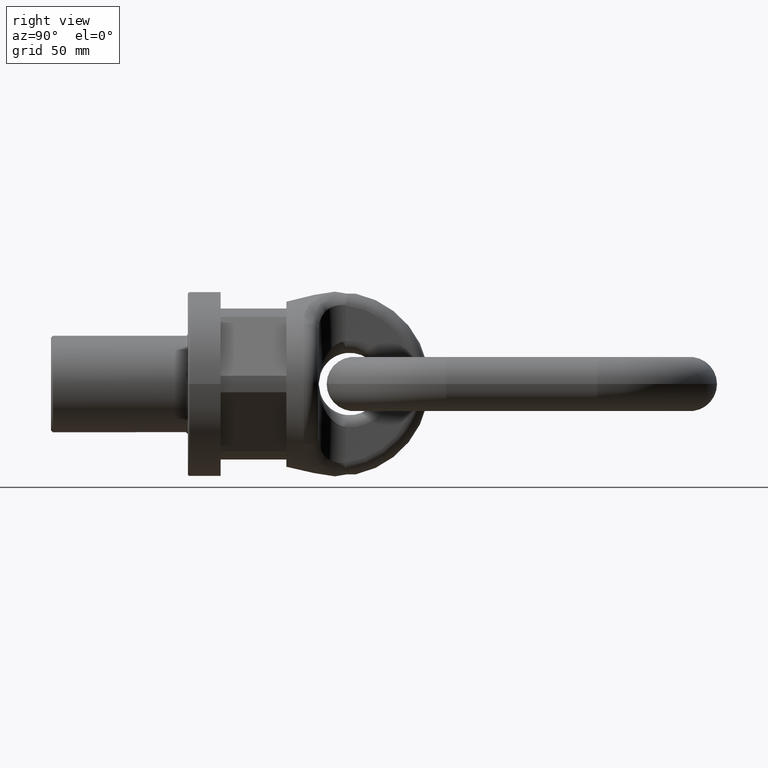
[diagram: clean part render]
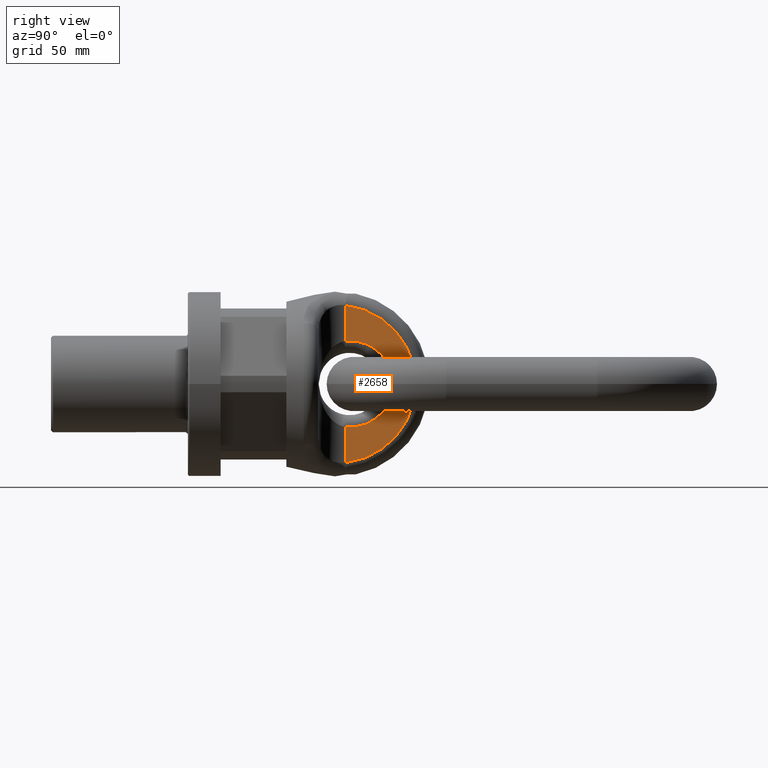
[diagram: same view with one face highlighted and labeled with its STEP entity id]
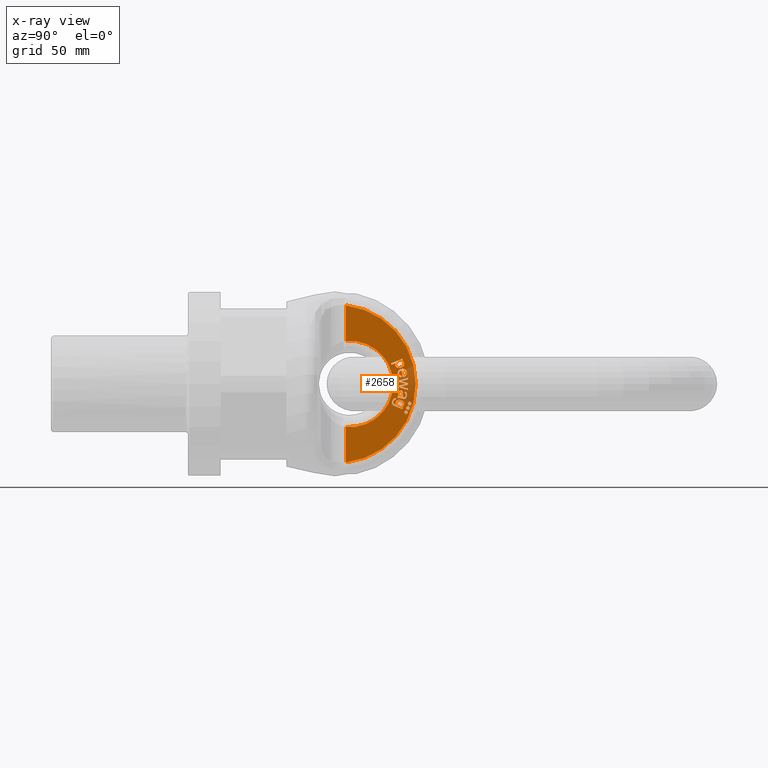
[diagram: x-ray of the same camera — body ghosted, the highlighted face saturated]
A machine part, right view. The second image highlights one B-rep face of the part: STEP entity #2658.
The next image is the same camera in x-ray: the body ghosted, the highlighted face saturated — about 9% of this face is hidden behind the body in this view.
In plain terms, the highlighted planar face has unit normal (1, -0, 0).
Its self-contained STEP definition (entity closure, byte-faithful):
#308=B_SPLINE_CURVE_WITH_KNOTS('',3,(#6660,#6661,#6662,#6663,#6664,#6665),
 .UNSPECIFIED.,.F.,.F.,(4,2,4),(0.,0.670501232539027,1.),.UNSPECIFIED.);
#309=B_SPLINE_CURVE_WITH_KNOTS('',3,(#6667,#6668,#6669,#6670),
 .UNSPECIFIED.,.F.,.F.,(4,4),(0.,1.),.UNSPECIFIED.);
#310=B_SPLINE_CURVE_WITH_KNOTS('',3,(#6672,#6673,#6674,#6675,#6676,#6677),
 .UNSPECIFIED.,.F.,.F.,(4,2,4),(0.,0.470198675496688,1.),.UNSPECIFIED.);
#311=B_SPLINE_CURVE_WITH_KNOTS('',3,(#6679,#6680,#6681,#6682),
 .UNSPECIFIED.,.F.,.F.,(4,4),(0.,1.),.UNSPECIFIED.);
#312=B_SPLINE_CURVE_WITH_KNOTS('',3,(#6686,#6687,#6688,#6689),
 .UNSPECIFIED.,.F.,.F.,(4,4),(0.,1.),.UNSPECIFIED.);
#313=B_SPLINE_CURVE_WITH_KNOTS('',3,(#6691,#6692,#6693,#6694,#6695,#6696),
 .UNSPECIFIED.,.F.,.F.,(4,2,4),(0.,0.444196428571434,1.),.UNSPECIFIED.);
#314=B_SPLINE_CURVE_WITH_KNOTS('',3,(#6698,#6699,#6700,#6701,#6702,#6703),
 .UNSPECIFIED.,.F.,.F.,(4,2,4),(0.,0.500000000000002,1.),.UNSPECIFIED.);
#315=B_SPLINE_CURVE_WITH_KNOTS('',3,(#6705,#6706,#6707,#6708,#6709,#6710,
#6711,#6712,#6713,#6714,#6715,#6716,#6717,#6718),.UNSPECIFIED.,.F.,.F.,
(4,2,2,2,2,2,4),(0.,0.149537296690975,0.323681996634893,0.497826696578807,
0.672812675266412,0.847798653954013,1.),.UNSPECIFIED.);
#316=B_SPLINE_CURVE_WITH_KNOTS('',3,(#6723,#6724,#6725,#6726),
 .UNSPECIFIED.,.F.,.F.,(4,4),(0.,1.),.UNSPECIFIED.);
#317=B_SPLINE_CURVE_WITH_KNOTS('',3,(#6731,#6732,#6733,#6734),
 .UNSPECIFIED.,.F.,.F.,(4,4),(0.,1.),.UNSPECIFIED.);
#318=B_SPLINE_CURVE_WITH_KNOTS('',3,(#6736,#6737,#6738,#6739,#6740,#6741),
 .UNSPECIFIED.,.F.,.F.,(4,2,4),(0.,0.565320665083134,1.),.UNSPECIFIED.);
#319=B_SPLINE_CURVE_WITH_KNOTS('',3,(#6743,#6744,#6745,#6746),
 .UNSPECIFIED.,.F.,.F.,(4,4),(0.,1.),.UNSPECIFIED.);
#320=B_SPLINE_CURVE_WITH_KNOTS('',3,(#6750,#6751,#6752,#6753),
 .UNSPECIFIED.,.F.,.F.,(4,4),(0.,1.),.UNSPECIFIED.);
#321=B_SPLINE_CURVE_WITH_KNOTS('',3,(#6755,#6756,#6757,#6758,#6759,#6760),
 .UNSPECIFIED.,.F.,.F.,(4,2,4),(0.,0.429530201342282,1.),.UNSPECIFIED.);
#322=B_SPLINE_CURVE_WITH_KNOTS('',3,(#6762,#6763,#6764,#6765,#6766,#6767,
#6768,#6769,#6770,#6771,#6772,#6773),.UNSPECIFIED.,.F.,.F.,(4,2,2,2,2,4),
(0.,0.253866185683641,0.504362466247586,0.754858746811531,0.877429373405765,
1.),.UNSPECIFIED.);
#323=B_SPLINE_CURVE_WITH_KNOTS('',3,(#6797,#6798,#6799,#6800),
 .UNSPECIFIED.,.F.,.F.,(4,4),(0.,1.),.UNSPECIFIED.);
#324=B_SPLINE_CURVE_WITH_KNOTS('',3,(#6802,#6803,#6804,#6805),
 .UNSPECIFIED.,.F.,.F.,(4,4),(0.,1.),.UNSPECIFIED.);
#325=B_SPLINE_CURVE_WITH_KNOTS('',3,(#6827,#6828,#6829,#6830),
 .UNSPECIFIED.,.F.,.F.,(4,4),(0.,1.),.UNSPECIFIED.);
#326=B_SPLINE_CURVE_WITH_KNOTS('',3,(#6835,#6836,#6837,#6838),
 .UNSPECIFIED.,.F.,.F.,(4,4),(0.,1.),.UNSPECIFIED.);
#327=B_SPLINE_CURVE_WITH_KNOTS('',3,(#6843,#6844,#6845,#6846),
 .UNSPECIFIED.,.F.,.F.,(4,4),(0.,1.),.UNSPECIFIED.);
#328=B_SPLINE_CURVE_WITH_KNOTS('',3,(#6848,#6849,#6850,#6851,#6852,#6853,
#6854,#6855,#6856,#6857),.UNSPECIFIED.,.F.,.F.,(4,2,2,2,4),(0.,0.296954694318532,
0.533565653962708,0.771641518085911,1.),.UNSPECIFIED.);
#329=B_SPLINE_CURVE_WITH_KNOTS('',3,(#6859,#6860,#6861,#6862),
 .UNSPECIFIED.,.F.,.F.,(4,4),(0.,1.),.UNSPECIFIED.);
#330=B_SPLINE_CURVE_WITH_KNOTS('',3,(#6866,#6867,#6868,#6869),
 .UNSPECIFIED.,.F.,.F.,(4,4),(0.,1.),.UNSPECIFIED.);
#331=B_SPLINE_CURVE_WITH_KNOTS('',3,(#6871,#6872,#6873,#6874),
 .UNSPECIFIED.,.F.,.F.,(4,4),(0.,1.),.UNSPECIFIED.);
#332=B_SPLINE_CURVE_WITH_KNOTS('',3,(#6876,#6877,#6878,#6879),
 .UNSPECIFIED.,.F.,.F.,(4,4),(0.,1.),.UNSPECIFIED.);
#333=B_SPLINE_CURVE_WITH_KNOTS('',3,(#6881,#6882,#6883,#6884),
 .UNSPECIFIED.,.F.,.F.,(4,4),(0.,1.),.UNSPECIFIED.);
#334=B_SPLINE_CURVE_WITH_KNOTS('',3,(#6886,#6887,#6888,#6889,#6890,#6891),
 .UNSPECIFIED.,.F.,.F.,(4,2,4),(0.,0.440217391304352,1.),.UNSPECIFIED.);
#335=B_SPLINE_CURVE_WITH_KNOTS('',3,(#6893,#6894,#6895,#6896),
 .UNSPECIFIED.,.F.,.F.,(4,4),(0.,1.),.UNSPECIFIED.);
#336=B_SPLINE_CURVE_WITH_KNOTS('',3,(#6900,#6901,#6902,#6903),
 .UNSPECIFIED.,.F.,.F.,(4,4),(0.,1.),.UNSPECIFIED.);
#337=B_SPLINE_CURVE_WITH_KNOTS('',3,(#6905,#6906,#6907,#6908,#6909,#6910),
 .UNSPECIFIED.,.F.,.F.,(4,2,4),(0.,0.52387640449438,1.),.UNSPECIFIED.);
#338=B_SPLINE_CURVE_WITH_KNOTS('',3,(#6912,#6913,#6914,#6915),
 .UNSPECIFIED.,.F.,.F.,(4,4),(0.,1.),.UNSPECIFIED.);
#339=B_SPLINE_CURVE_WITH_KNOTS('',3,(#6917,#6918,#6919,#6920,#6921,#6922,
#6923,#6924),.UNSPECIFIED.,.F.,.F.,(4,2,2,4),(0.,0.269230769230754,0.527644230769219,
1.),.UNSPECIFIED.);
#340=B_SPLINE_CURVE_WITH_KNOTS('',3,(#6928,#6929,#6930,#6931),
 .UNSPECIFIED.,.F.,.F.,(4,4),(0.,1.),.UNSPECIFIED.);
#341=B_SPLINE_CURVE_WITH_KNOTS('',3,(#6933,#6934,#6935,#6936),
 .UNSPECIFIED.,.F.,.F.,(4,4),(0.,1.),.UNSPECIFIED.);
#342=B_SPLINE_CURVE_WITH_KNOTS('',3,(#6938,#6939,#6940,#6941,#6942,#6943,
#6944,#6945,#6946,#6947),.UNSPECIFIED.,.F.,.F.,(4,2,2,2,4),(0.,0.245990994549334,
0.507925849856492,0.76986070516365,1.),.UNSPECIFIED.);
#2057=LINE('',#6657,#2313);
#2058=LINE('',#6684,#2314);
#2059=LINE('',#6720,#2315);
#2060=LINE('',#6722,#2316);
#2061=LINE('',#6729,#2317);
#2062=LINE('',#6748,#2318);
#2063=LINE('',#6780,#2319);
#2064=LINE('',#6785,#2320);
#2065=LINE('',#6788,#2321);
#2066=LINE('',#6791,#2322);
#2067=LINE('',#6793,#2323);
#2068=LINE('',#6795,#2324);
#2069=LINE('',#6807,#2325);
#2070=LINE('',#6809,#2326);
#2071=LINE('',#6811,#2327);
#2072=LINE('',#6813,#2328);
#2073=LINE('',#6815,#2329);
#2074=LINE('',#6817,#2330);
#2075=LINE('',#6819,#2331);
#2076=LINE('',#6821,#2332);
#2077=LINE('',#6823,#2333);
#2078=LINE('',#6825,#2334);
#2079=LINE('',#6832,#2335);
#2080=LINE('',#6834,#2336);
#2081=LINE('',#6841,#2337);
#2082=LINE('',#6864,#2338);
#2083=LINE('',#6898,#2339);
#2084=LINE('',#6925,#2340);
#2085=LINE('',#6949,#2341);
#2086=LINE('',#6951,#2342);
#2087=LINE('',#6953,#2343);
#2088=LINE('',#6955,#2344);
#2089=LINE('',#6957,#2345);
#2090=LINE('',#6959,#2346);
#2313=VECTOR('',#5907,1.);
#2314=VECTOR('',#5908,1.);
#2315=VECTOR('',#5909,1.);
#2316=VECTOR('',#5910,1.);
#2317=VECTOR('',#5911,1.);
#2318=VECTOR('',#5912,1.);
#2319=VECTOR('',#5919,1.);
#2320=VECTOR('',#5922,1.);
#2321=VECTOR('',#5925,1.);
#2322=VECTOR('',#5926,1.);
#2323=VECTOR('',#5927,1.);
#2324=VECTOR('',#5928,1.);
#2325=VECTOR('',#5929,1.);
#2326=VECTOR('',#5930,1.);
#2327=VECTOR('',#5931,1.);
#2328=VECTOR('',#5932,1.);
#2329=VECTOR('',#5933,1.);
#2330=VECTOR('',#5934,1.);
#2331=VECTOR('',#5935,1.);
#2332=VECTOR('',#5936,1.);
#2333=VECTOR('',#5937,1.);
#2334=VECTOR('',#5938,1.);
#2335=VECTOR('',#5939,1.);
#2336=VECTOR('',#5940,1.);
#2337=VECTOR('',#5941,1.);
#2338=VECTOR('',#5942,1.);
#2339=VECTOR('',#5943,1.);
#2340=VECTOR('',#5944,1.);
#2341=VECTOR('',#5945,1.);
#2342=VECTOR('',#5946,1.);
#2343=VECTOR('',#5947,1.);
#2344=VECTOR('',#5948,1.);
#2345=VECTOR('',#5949,1.);
#2346=VECTOR('',#5950,1.);
#2658=ADVANCED_FACE('',(#2999,#3000,#3001,#3002,#3003,#3004,#3005,#3006,
#3007),#2890,.T.);
#2890=PLANE('',#5641);
#2999=FACE_BOUND('',#3085,.T.);
#3000=FACE_BOUND('',#3086,.T.);
#3001=FACE_BOUND('',#3087,.T.);
#3002=FACE_BOUND('',#3088,.T.);
#3003=FACE_BOUND('',#3089,.T.);
#3004=FACE_BOUND('',#3090,.T.);
#3005=FACE_BOUND('',#3091,.T.);
#3006=FACE_BOUND('',#3092,.T.);
#3007=FACE_BOUND('',#3093,.T.);
#3085=EDGE_LOOP('',(#3429,#3430,#3431,#3432,#3433,#3434,#3435,#3436,#3437,
#3438,#3439,#3440));
#3086=EDGE_LOOP('',(#3441,#3442,#3443,#3444,#3445,#3446,#3447,#3448,#3449));
#3087=EDGE_LOOP('',(#3450));
#3088=EDGE_LOOP('',(#3451));
#3089=EDGE_LOOP('',(#3452));
#3090=EDGE_LOOP('',(#3453,#3454,#3455,#3456));
#3091=EDGE_LOOP('',(#3457,#3458,#3459,#3460,#3461,#3462,#3463,#3464,#3465,
#3466,#3467,#3468,#3469,#3470,#3471,#3472,#3473,#3474,#3475));
#3092=EDGE_LOOP('',(#3476,#3477,#3478,#3479,#3480,#3481,#3482,#3483,#3484,
#3485,#3486,#3487,#3488,#3489,#3490,#3491,#3492));
#3093=EDGE_LOOP('',(#3493,#3494,#3495,#3496,#3497,#3498,#3499,#3500,#3501,
#3502));
#3429=ORIENTED_EDGE('',*,*,#4976,.T.);
#3430=ORIENTED_EDGE('',*,*,#4977,.T.);
#3431=ORIENTED_EDGE('',*,*,#4978,.T.);
#3432=ORIENTED_EDGE('',*,*,#4979,.T.);
#3433=ORIENTED_EDGE('',*,*,#4980,.T.);
#3434=ORIENTED_EDGE('',*,*,#4981,.T.);
#3435=ORIENTED_EDGE('',*,*,#4982,.T.);
#3436=ORIENTED_EDGE('',*,*,#4983,.T.);
#3437=ORIENTED_EDGE('',*,*,#4984,.T.);
#3438=ORIENTED_EDGE('',*,*,#4985,.T.);
#3439=ORIENTED_EDGE('',*,*,#4986,.T.);
#3440=ORIENTED_EDGE('',*,*,#4987,.T.);
#3441=ORIENTED_EDGE('',*,*,#4988,.T.);
#3442=ORIENTED_EDGE('',*,*,#4989,.T.);
#3443=ORIENTED_EDGE('',*,*,#4990,.T.);
#3444=ORIENTED_EDGE('',*,*,#4991,.T.);
#3445=ORIENTED_EDGE('',*,*,#4992,.T.);
#3446=ORIENTED_EDGE('',*,*,#4993,.T.);
#3447=ORIENTED_EDGE('',*,*,#4994,.T.);
#3448=ORIENTED_EDGE('',*,*,#4995,.T.);
#3449=ORIENTED_EDGE('',*,*,#4996,.T.);
#3450=ORIENTED_EDGE('',*,*,#4997,.T.);
#3451=ORIENTED_EDGE('',*,*,#4998,.T.);
#3452=ORIENTED_EDGE('',*,*,#4999,.T.);
#3453=ORIENTED_EDGE('',*,*,#5000,.T.);
#3454=ORIENTED_EDGE('',*,*,#5001,.T.);
#3455=ORIENTED_EDGE('',*,*,#5002,.T.);
#3456=ORIENTED_EDGE('',*,*,#5003,.T.);
#3457=ORIENTED_EDGE('',*,*,#5004,.T.);
#3458=ORIENTED_EDGE('',*,*,#5005,.T.);
#3459=ORIENTED_EDGE('',*,*,#5006,.T.);
#3460=ORIENTED_EDGE('',*,*,#5007,.T.);
#3461=ORIENTED_EDGE('',*,*,#5008,.T.);
#3462=ORIENTED_EDGE('',*,*,#5009,.T.);
#3463=ORIENTED_EDGE('',*,*,#5010,.T.);
#3464=ORIENTED_EDGE('',*,*,#5011,.T.);
#3465=ORIENTED_EDGE('',*,*,#5012,.T.);
#3466=ORIENTED_EDGE('',*,*,#5013,.T.);
#3467=ORIENTED_EDGE('',*,*,#5014,.T.);
#3468=ORIENTED_EDGE('',*,*,#5015,.T.);
#3469=ORIENTED_EDGE('',*,*,#5016,.T.);
#3470=ORIENTED_EDGE('',*,*,#5017,.T.);
#3471=ORIENTED_EDGE('',*,*,#5018,.T.);
#3472=ORIENTED_EDGE('',*,*,#5019,.T.);
#3473=ORIENTED_EDGE('',*,*,#5020,.T.);
#3474=ORIENTED_EDGE('',*,*,#5021,.T.);
#3475=ORIENTED_EDGE('',*,*,#5022,.T.);
#3476=ORIENTED_EDGE('',*,*,#5023,.T.);
#3477=ORIENTED_EDGE('',*,*,#5024,.T.);
#3478=ORIENTED_EDGE('',*,*,#5025,.T.);
#3479=ORIENTED_EDGE('',*,*,#5026,.T.);
#3480=ORIENTED_EDGE('',*,*,#5027,.T.);
#3481=ORIENTED_EDGE('',*,*,#5028,.T.);
#3482=ORIENTED_EDGE('',*,*,#5029,.T.);
#3483=ORIENTED_EDGE('',*,*,#5030,.T.);
#3484=ORIENTED_EDGE('',*,*,#5031,.T.);
#3485=ORIENTED_EDGE('',*,*,#5032,.T.);
#3486=ORIENTED_EDGE('',*,*,#5033,.T.);
#3487=ORIENTED_EDGE('',*,*,#5034,.T.);
#3488=ORIENTED_EDGE('',*,*,#5035,.T.);
#3489=ORIENTED_EDGE('',*,*,#5036,.T.);
#3490=ORIENTED_EDGE('',*,*,#5037,.T.);
#3491=ORIENTED_EDGE('',*,*,#5038,.T.);
#3492=ORIENTED_EDGE('',*,*,#5039,.T.);
#3493=ORIENTED_EDGE('',*,*,#5040,.T.);
#3494=ORIENTED_EDGE('',*,*,#5041,.T.);
#3495=ORIENTED_EDGE('',*,*,#5042,.T.);
#3496=ORIENTED_EDGE('',*,*,#5043,.T.);
#3497=ORIENTED_EDGE('',*,*,#5044,.T.);
#3498=ORIENTED_EDGE('',*,*,#5045,.T.);
#3499=ORIENTED_EDGE('',*,*,#5046,.T.);
#3500=ORIENTED_EDGE('',*,*,#5047,.T.);
#3501=ORIENTED_EDGE('',*,*,#5048,.T.);
#3502=ORIENTED_EDGE('',*,*,#5049,.T.);
#4566=VERTEX_POINT('',#6658);
#4567=VERTEX_POINT('',#6659);
#4568=VERTEX_POINT('',#6666);
#4569=VERTEX_POINT('',#6671);
#4570=VERTEX_POINT('',#6678);
#4571=VERTEX_POINT('',#6683);
#4572=VERTEX_POINT('',#6685);
#4573=VERTEX_POINT('',#6690);
#4574=VERTEX_POINT('',#6697);
#4575=VERTEX_POINT('',#6704);
#4576=VERTEX_POINT('',#6719);
#4577=VERTEX_POINT('',#6721);
#4578=VERTEX_POINT('',#6727);
#4579=VERTEX_POINT('',#6728);
#4580=VERTEX_POINT('',#6730);
#4581=VERTEX_POINT('',#6735);
#4582=VERTEX_POINT('',#6742);
#4583=VERTEX_POINT('',#6747);
#4584=VERTEX_POINT('',#6749);
#4585=VERTEX_POINT('',#6754);
#4586=VERTEX_POINT('',#6761);
#4587=VERTEX_POINT('',#6775);
#4588=VERTEX_POINT('',#6777);
#4589=VERTEX_POINT('',#6779);
#4590=VERTEX_POINT('',#6781);
#4591=VERTEX_POINT('',#6782);
#4592=VERTEX_POINT('',#6784);
#4593=VERTEX_POINT('',#6786);
#4594=VERTEX_POINT('',#6789);
#4595=VERTEX_POINT('',#6790);
#4596=VERTEX_POINT('',#6792);
#4597=VERTEX_POINT('',#6794);
#4598=VERTEX_POINT('',#6796);
#4599=VERTEX_POINT('',#6801);
#4600=VERTEX_POINT('',#6806);
#4601=VERTEX_POINT('',#6808);
#4602=VERTEX_POINT('',#6810);
#4603=VERTEX_POINT('',#6812);
#4604=VERTEX_POINT('',#6814);
#4605=VERTEX_POINT('',#6816);
#4606=VERTEX_POINT('',#6818);
#4607=VERTEX_POINT('',#6820);
#4608=VERTEX_POINT('',#6822);
#4609=VERTEX_POINT('',#6824);
#4610=VERTEX_POINT('',#6826);
#4611=VERTEX_POINT('',#6831);
#4612=VERTEX_POINT('',#6833);
#4613=VERTEX_POINT('',#6839);
#4614=VERTEX_POINT('',#6840);
#4615=VERTEX_POINT('',#6842);
#4616=VERTEX_POINT('',#6847);
#4617=VERTEX_POINT('',#6858);
#4618=VERTEX_POINT('',#6863);
#4619=VERTEX_POINT('',#6865);
#4620=VERTEX_POINT('',#6870);
#4621=VERTEX_POINT('',#6875);
#4622=VERTEX_POINT('',#6880);
#4623=VERTEX_POINT('',#6885);
#4624=VERTEX_POINT('',#6892);
#4625=VERTEX_POINT('',#6897);
#4626=VERTEX_POINT('',#6899);
#4627=VERTEX_POINT('',#6904);
#4628=VERTEX_POINT('',#6911);
#4629=VERTEX_POINT('',#6916);
#4630=VERTEX_POINT('',#6926);
#4631=VERTEX_POINT('',#6927);
#4632=VERTEX_POINT('',#6932);
#4633=VERTEX_POINT('',#6937);
#4634=VERTEX_POINT('',#6948);
#4635=VERTEX_POINT('',#6950);
#4636=VERTEX_POINT('',#6952);
#4637=VERTEX_POINT('',#6954);
#4638=VERTEX_POINT('',#6956);
#4639=VERTEX_POINT('',#6958);
#4976=EDGE_CURVE('',#4566,#4567,#2057,.T.);
#4977=EDGE_CURVE('',#4567,#4568,#308,.T.);
#4978=EDGE_CURVE('',#4568,#4569,#309,.T.);
#4979=EDGE_CURVE('',#4569,#4570,#310,.T.);
#4980=EDGE_CURVE('',#4570,#4571,#311,.T.);
#4981=EDGE_CURVE('',#4571,#4572,#2058,.T.);
#4982=EDGE_CURVE('',#4572,#4573,#312,.T.);
#4983=EDGE_CURVE('',#4573,#4574,#313,.T.);
#4984=EDGE_CURVE('',#4574,#4575,#314,.T.);
#4985=EDGE_CURVE('',#4575,#4576,#315,.T.);
#4986=EDGE_CURVE('',#4576,#4577,#2059,.T.);
#4987=EDGE_CURVE('',#4577,#4566,#2060,.T.);
#4988=EDGE_CURVE('',#4578,#4579,#316,.T.);
#4989=EDGE_CURVE('',#4579,#4580,#2061,.T.);
#4990=EDGE_CURVE('',#4580,#4581,#317,.T.);
#4991=EDGE_CURVE('',#4581,#4582,#318,.T.);
#4992=EDGE_CURVE('',#4582,#4583,#319,.T.);
#4993=EDGE_CURVE('',#4583,#4584,#2062,.T.);
#4994=EDGE_CURVE('',#4584,#4585,#320,.T.);
#4995=EDGE_CURVE('',#4585,#4586,#321,.T.);
#4996=EDGE_CURVE('',#4586,#4578,#322,.T.);
#4997=EDGE_CURVE('',#4587,#4587,#5548,.T.);
#4998=EDGE_CURVE('',#4588,#4588,#5549,.T.);
#4999=EDGE_CURVE('',#4589,#4589,#5550,.T.);
#5000=EDGE_CURVE('',#4590,#4591,#2063,.T.);
#5001=EDGE_CURVE('',#4591,#4592,#5551,.T.);
#5002=EDGE_CURVE('',#4592,#4593,#2064,.T.);
#5003=EDGE_CURVE('',#4593,#4590,#5552,.T.);
#5004=EDGE_CURVE('',#4594,#4595,#2065,.T.);
#5005=EDGE_CURVE('',#4595,#4596,#2066,.T.);
#5006=EDGE_CURVE('',#4596,#4597,#2067,.T.);
#5007=EDGE_CURVE('',#4597,#4598,#2068,.T.);
#5008=EDGE_CURVE('',#4598,#4599,#323,.T.);
#5009=EDGE_CURVE('',#4599,#4600,#324,.T.);
#5010=EDGE_CURVE('',#4600,#4601,#2069,.T.);
#5011=EDGE_CURVE('',#4601,#4602,#2070,.T.);
#5012=EDGE_CURVE('',#4602,#4603,#2071,.T.);
#5013=EDGE_CURVE('',#4603,#4604,#2072,.T.);
#5014=EDGE_CURVE('',#4604,#4605,#2073,.T.);
#5015=EDGE_CURVE('',#4605,#4606,#2074,.T.);
#5016=EDGE_CURVE('',#4606,#4607,#2075,.T.);
#5017=EDGE_CURVE('',#4607,#4608,#2076,.T.);
#5018=EDGE_CURVE('',#4608,#4609,#2077,.T.);
#5019=EDGE_CURVE('',#4609,#4610,#2078,.T.);
#5020=EDGE_CURVE('',#4610,#4611,#325,.T.);
#5021=EDGE_CURVE('',#4611,#4612,#2079,.T.);
#5022=EDGE_CURVE('',#4612,#4594,#2080,.T.);
#5023=EDGE_CURVE('',#4613,#4614,#326,.T.);
#5024=EDGE_CURVE('',#4614,#4615,#2081,.T.);
#5025=EDGE_CURVE('',#4615,#4616,#327,.T.);
#5026=EDGE_CURVE('',#4616,#4617,#328,.T.);
#5027=EDGE_CURVE('',#4617,#4618,#329,.T.);
#5028=EDGE_CURVE('',#4618,#4619,#2082,.T.);
#5029=EDGE_CURVE('',#4619,#4620,#330,.T.);
#5030=EDGE_CURVE('',#4620,#4621,#331,.T.);
#5031=EDGE_CURVE('',#4621,#4622,#332,.T.);
#5032=EDGE_CURVE('',#4622,#4623,#333,.T.);
#5033=EDGE_CURVE('',#4623,#4624,#334,.T.);
#5034=EDGE_CURVE('',#4624,#4625,#335,.T.);
#5035=EDGE_CURVE('',#4625,#4626,#2083,.T.);
#5036=EDGE_CURVE('',#4626,#4627,#336,.T.);
#5037=EDGE_CURVE('',#4627,#4628,#337,.T.);
#5038=EDGE_CURVE('',#4628,#4629,#338,.T.);
#5039=EDGE_CURVE('',#4629,#4613,#339,.T.);
#5040=EDGE_CURVE('',#4630,#4631,#2084,.T.);
#5041=EDGE_CURVE('',#4631,#4632,#340,.T.);
#5042=EDGE_CURVE('',#4632,#4633,#341,.T.);
#5043=EDGE_CURVE('',#4633,#4634,#342,.T.);
#5044=EDGE_CURVE('',#4634,#4635,#2085,.T.);
#5045=EDGE_CURVE('',#4635,#4636,#2086,.T.);
#5046=EDGE_CURVE('',#4636,#4637,#2087,.T.);
#5047=EDGE_CURVE('',#4637,#4638,#2088,.T.);
#5048=EDGE_CURVE('',#4638,#4639,#2089,.T.);
#5049=EDGE_CURVE('',#4639,#4630,#2090,.T.);
#5548=CIRCLE('',#5636,0.9);
#5549=CIRCLE('',#5637,0.9);
#5550=CIRCLE('',#5638,0.9);
#5551=CIRCLE('',#5639,21.5);
#5552=CIRCLE('',#5640,39.2905841137543);
#5636=AXIS2_PLACEMENT_3D('',#6774,#5913,#5914);
#5637=AXIS2_PLACEMENT_3D('',#6776,#5915,#5916);
#5638=AXIS2_PLACEMENT_3D('',#6778,#5917,#5918);
#5639=AXIS2_PLACEMENT_3D('',#6783,#5920,#5921);
#5640=AXIS2_PLACEMENT_3D('',#6787,#5923,#5924);
#5641=AXIS2_PLACEMENT_3D('',#6960,#5951,#5952);
#5907=DIRECTION('',(-1.30040941015037E-16,-0.374817493438867,-0.92709861752254));
#5908=DIRECTION('',(-1.76855906663422E-16,-0.509752445022502,-0.860321128877805));
#5909=DIRECTION('',(-1.30040941015361E-16,-0.374817493439802,-0.927098617522162));
#5910=DIRECTION('',(3.21651947272403E-16,0.927098617522554,-0.374817493438833));
#5911=DIRECTION('',(-7.10391998252269E-17,-0.204756552871418,0.97881293108347));
#5912=DIRECTION('',(2.95258561137855E-17,0.0851024861387772,-0.996372202970857));
#5913=DIRECTION('',(-1.,3.46944695195361E-16,0.));
#5914=DIRECTION('',(0.,0.999999999999997,0.));
#5915=DIRECTION('',(-1.,3.46944695195361E-16,0.));
#5916=DIRECTION('',(0.,0.999999999999997,0.));
#5917=DIRECTION('',(-1.,3.46944695195361E-16,0.));
#5918=DIRECTION('',(0.,0.999999999999997,0.));
#5919=DIRECTION('',(0.,0.,-1.));
#5920=DIRECTION('',(-1.,3.46944695195361E-16,0.));
#5921=DIRECTION('',(3.22739251344522E-16,1.,0.));
#5922=DIRECTION('',(0.,0.,-1.));
#5923=DIRECTION('',(1.,-3.46944695195361E-16,0.));
#5924=DIRECTION('',(3.53208997036934E-16,1.,0.));
#5925=DIRECTION('',(1.73802266450972E-19,0.000500950926351836,-0.999999874524077));
#5926=DIRECTION('',(-3.30550145334174E-16,-0.952745927266721,0.303768329614324));
#5927=DIRECTION('',(-1.73802266460211E-19,-0.000500950926378467,0.999999874524077));
#5928=DIRECTION('',(3.35048327118242E-16,0.965711053542926,0.259619261737283));
#5929=DIRECTION('',(-1.73802266860902E-19,-0.00050095092753338,0.999999874524076));
#5930=DIRECTION('',(-3.35577016754003E-16,-0.967234897668755,0.25388314778991));
#5931=DIRECTION('',(-1.73802266458135E-19,-0.000500950926372482,0.999999874524077));
#5932=DIRECTION('',(3.31094896077287E-16,0.954316064382684,0.298799011479533));
#5933=DIRECTION('',(1.73802266460211E-19,0.000500950926378467,-0.999999874524077));
#5934=DIRECTION('',(-3.34064523309161E-16,-0.962875432123419,-0.269946109831463));
#5935=DIRECTION('',(3.36172517470205E-16,0.96895131162305,-0.247251604047317));
#5936=DIRECTION('',(3.34485825316377E-16,0.96408975248355,-0.265576635185039));
#5937=DIRECTION('',(1.73802266467179E-19,0.000500950926398549,-0.999999874524077));
#5938=DIRECTION('',(-3.35606900252588E-16,-0.967321030989135,-0.253554773187405));
#5939=DIRECTION('',(1.73802266580637E-19,0.00050095092672557,-0.999999874524077));
#5940=DIRECTION('',(3.3236942960569E-16,0.95798965716578,-0.286802748876978));
#5941=DIRECTION('',(7.06989244013763E-17,0.203775775737301,0.979017585757611));
#5942=DIRECTION('',(-2.05539117948393E-17,-0.0592426172801564,-0.998243613702486));
#5943=DIRECTION('',(1.13196019061656E-16,0.326265311530174,0.945278237606324));
#5944=DIRECTION('',(1.30363139388309E-16,0.375746167022102,-0.926722621914561));
#5945=DIRECTION('',(-1.30363139388601E-16,-0.375746167022945,0.926722621914219));
#5946=DIRECTION('',(-3.21521497590723E-16,-0.926722621914358,-0.375746167022603));
#5947=DIRECTION('',(-1.30363139388485E-16,-0.37574616702261,0.926722621914356));
#5948=DIRECTION('',(3.21521497590723E-16,0.926722621914359,0.375746167022601));
#5949=DIRECTION('',(1.30363139388489E-16,0.375746167022622,-0.92672262191435));
#5950=DIRECTION('',(-3.21521497590724E-16,-0.92672262191436,-0.375746167022599));
#5951=DIRECTION('',(1.,-3.46944695195361E-16,0.));
#5952=DIRECTION('',(3.46944695195361E-16,1.,0.));
#6657=CARTESIAN_POINT('',(13.5,130.372061157971,46.4066705185968));
#6658=CARTESIAN_POINT('',(13.5,106.81728875282,-11.8552764693059));
#6659=CARTESIAN_POINT('',(13.5,106.557962951412,-12.496710223552));
#6660=CARTESIAN_POINT('',(13.5,106.557962951412,-12.496710223552));
#6661=CARTESIAN_POINT('',(13.5,105.396777269296,-12.0272534704497));
#6662=CARTESIAN_POINT('',(13.5,104.23559158718,-11.5577967173475));
#6663=CARTESIAN_POINT('',(13.5,102.503774215691,-10.857638790233));
#6664=CARTESIAN_POINT('',(13.5,102.100283137163,-10.6271271267037));
#6665=CARTESIAN_POINT('',(13.5,101.863932669478,-10.3968049736574));
#6666=CARTESIAN_POINT('',(13.5,101.863932669478,-10.3968049736574));
#6667=CARTESIAN_POINT('',(13.5,101.863932669478,-10.3968049736574));
#6668=CARTESIAN_POINT('',(13.5,101.629005223463,-10.1670581352594));
#6669=CARTESIAN_POINT('',(13.5,101.493570020937,-9.87140544270642));
#6670=CARTESIAN_POINT('',(13.5,101.456456290789,-9.51274275944862));
#6671=CARTESIAN_POINT('',(13.5,101.456456290789,-9.51274275944862));
#6672=CARTESIAN_POINT('',(13.5,101.456456290789,-9.51274275944862));
#6673=CARTESIAN_POINT('',(13.5,101.418504924528,-9.15205682981726));
#6674=CARTESIAN_POINT('',(13.5,101.483072808438,-8.76711918321557));
#6675=CARTESIAN_POINT('',(13.5,101.836645684398,-7.89256842121864));
#6676=CARTESIAN_POINT('',(13.5,102.093978166428,-7.54681799063787));
#6677=CARTESIAN_POINT('',(13.5,102.422157388609,-7.32067852790126));
#6678=CARTESIAN_POINT('',(13.5,102.422157388609,-7.32067852790126));
#6679=CARTESIAN_POINT('',(13.5,102.422157388609,-7.32067852790126));
#6680=CARTESIAN_POINT('',(13.5,102.749498974676,-7.09251581879108));
#6681=CARTESIAN_POINT('',(13.5,103.143113892573,-7.07308336900351));
#6682=CARTESIAN_POINT('',(13.5,103.602749891744,-7.25891000043981));
#6683=CARTESIAN_POINT('',(13.5,103.602749891744,-7.25891000043981));
#6684=CARTESIAN_POINT('',(13.5,133.237606451551,42.7565308250357));
#6685=CARTESIAN_POINT('',(13.5,103.227502662356,-7.8922235296791));
#6686=CARTESIAN_POINT('',(13.5,103.227502662356,-7.8922235296791));
#6687=CARTESIAN_POINT('',(13.5,103.004935493624,-7.83256441811896));
#6688=CARTESIAN_POINT('',(13.5,102.808677776625,-7.8593488761822));
#6689=CARTESIAN_POINT('',(13.5,102.639314896914,-7.97112897214365));
#6690=CARTESIAN_POINT('',(13.5,102.639314896914,-7.97112897214365));
#6691=CARTESIAN_POINT('',(13.5,102.639314896914,-7.97112897214365));
#6692=CARTESIAN_POINT('',(13.5,102.470789653317,-8.08493231447867));
#6693=CARTESIAN_POINT('',(13.5,102.327150839782,-8.28460391178866));
#6694=CARTESIAN_POINT('',(13.5,102.064898110593,-8.93327732466055));
#6695=CARTESIAN_POINT('',(13.5,102.030932044492,-9.22614194570865));
#6696=CARTESIAN_POINT('',(13.5,102.106752508565,-9.45220880531664));
#6697=CARTESIAN_POINT('',(13.5,102.106752508565,-9.45220880531664));
#6698=CARTESIAN_POINT('',(13.5,102.106752508565,-9.45220880531664));
#6699=CARTESIAN_POINT('',(13.5,102.184581379863,-9.67740304784787));
#6700=CARTESIAN_POINT('',(13.5,102.31805067069,-9.85096990208865));
#6701=CARTESIAN_POINT('',(13.5,102.70313294919,-10.0942542291326));
#6702=CARTESIAN_POINT('',(13.5,102.98155029248,-10.22871558589));
#6703=CARTESIAN_POINT('',(13.5,103.34584383981,-10.3759961358829));
#6704=CARTESIAN_POINT('',(13.5,103.34584383981,-10.3759961358829));
#6705=CARTESIAN_POINT('',(13.5,103.34584383981,-10.3759961358829));
#6706=CARTESIAN_POINT('',(13.5,103.114694661529,-9.9321483042439));
#6707=CARTESIAN_POINT('',(13.5,103.093619397498,-9.48057855877232));
#6708=CARTESIAN_POINT('',(13.5,103.494023117957,-8.49019325876255));
#6709=CARTESIAN_POINT('',(13.5,103.860828189619,-8.13984826029875));
#6710=CARTESIAN_POINT('',(13.5,104.896033935773,-7.80704187961199));
#6711=CARTESIAN_POINT('',(13.5,105.44910816507,-7.84365438252367));
#6712=CARTESIAN_POINT('',(13.5,106.630216150556,-8.32116554070363));
#6713=CARTESIAN_POINT('',(13.5,107.060783029716,-8.67717635001909));
#6714=CARTESIAN_POINT('',(13.5,107.595079703084,-9.62430303395766));
#6715=CARTESIAN_POINT('',(13.5,107.617264048243,-10.1386512876347));
#6716=CARTESIAN_POINT('',(13.5,107.196957218872,-11.1782662663));
#6717=CARTESIAN_POINT('',(13.5,106.847047443898,-11.4950115326567));
#6718=CARTESIAN_POINT('',(13.5,106.34132364806,-11.6443175545182));
#6719=CARTESIAN_POINT('',(13.5,106.34132364806,-11.6443175545182));
#6720=CARTESIAN_POINT('',(13.5,129.889656812147,46.6017021843739));
#6721=CARTESIAN_POINT('',(13.5,106.334884406941,-11.660244803495));
#6722=CARTESIAN_POINT('',(13.5,96.4452275948507,-7.66194698790387));
#6723=CARTESIAN_POINT('',(13.5,108.280943896968,4.04752866905107));
#6724=CARTESIAN_POINT('',(13.5,107.997454908028,3.77601196076485));
#6725=CARTESIAN_POINT('',(13.5,107.517079338275,3.56861803299258));
#6726=CARTESIAN_POINT('',(13.5,106.840999800304,3.42718986907525));
#6727=CARTESIAN_POINT('',(13.5,108.280943896968,4.04752866905107));
#6728=CARTESIAN_POINT('',(13.5,106.840999800304,3.42718986907525));
#6729=CARTESIAN_POINT('',(13.5,97.9383967980231,45.9849630721025));
#6730=CARTESIAN_POINT('',(13.5,106.163052679194,6.66803075757183));
#6731=CARTESIAN_POINT('',(13.5,106.163052679194,6.66803075757183));
#6732=CARTESIAN_POINT('',(13.5,105.699197528119,6.53908564180092));
#6733=CARTESIAN_POINT('',(13.5,105.36858516114,6.32791740314482));
#6734=CARTESIAN_POINT('',(13.5,105.171535364634,6.03299734307122));
#6735=CARTESIAN_POINT('',(13.5,105.171535364634,6.03299734307122));
#6736=CARTESIAN_POINT('',(13.5,105.171535364634,6.03299734307122));
#6737=CARTESIAN_POINT('',(13.5,104.972983169155,5.73776299818892));
#6738=CARTESIAN_POINT('',(13.5,104.913423942546,5.40778063594546));
#6739=CARTESIAN_POINT('',(13.5,105.048054007634,4.76419855384307));
#6740=CARTESIAN_POINT('',(13.5,105.169416260545,4.54386465068523));
#6741=CARTESIAN_POINT('',(13.5,105.354802471809,4.38479165912323));
#6742=CARTESIAN_POINT('',(13.5,105.354802471809,4.38479165912323));
#6743=CARTESIAN_POINT('',(13.5,105.354802471809,4.38479165912323));
#6744=CARTESIAN_POINT('',(13.5,105.540508469451,4.22418996902891));
#6745=CARTESIAN_POINT('',(13.5,105.790238425447,4.12484919053045));
#6746=CARTESIAN_POINT('',(13.5,106.105814525148,4.08555490990422));
#6747=CARTESIAN_POINT('',(13.5,106.105814525148,4.08555490990422));
#6748=CARTESIAN_POINT('',(13.5,102.262307932154,49.0849821293319));
#6749=CARTESIAN_POINT('',(13.5,106.171822872074,3.31273516014452));
#6750=CARTESIAN_POINT('',(13.5,106.171822872074,3.31273516014452));
#6751=CARTESIAN_POINT('',(13.5,105.701529865757,3.34200273935256));
#6752=CARTESIAN_POINT('',(13.5,105.31497910025,3.49569305683472));
#6753=CARTESIAN_POINT('',(13.5,105.009485563985,3.77164884444127));
#6754=CARTESIAN_POINT('',(13.5,105.009485563985,3.77164884444127));
#6755=CARTESIAN_POINT('',(13.5,105.009485563985,3.77164884444127));
#6756=CARTESIAN_POINT('',(13.5,104.702489628746,4.04729034723912));
#6757=CARTESIAN_POINT('',(13.5,104.498417146964,4.4306243554781));
#6758=CARTESIAN_POINT('',(13.5,104.260176295441,5.56950476204883));
#6759=CARTESIAN_POINT('',(13.5,104.349319084509,6.11788969990733));
#6760=CARTESIAN_POINT('',(13.5,104.665016272218,6.5652769842014));
#6761=CARTESIAN_POINT('',(13.5,104.665016272218,6.5652769842014));
#6762=CARTESIAN_POINT('',(13.5,104.665016272218,6.5652769842014));
#6763=CARTESIAN_POINT('',(13.5,104.979211060954,7.01234998368676));
#6764=CARTESIAN_POINT('',(13.5,105.475690730091,7.30767919946297));
#6765=CARTESIAN_POINT('',(13.5,106.824845008085,7.58990695768021));
#6766=CARTESIAN_POINT('',(13.5,107.405808656242,7.52634902868356));
#6767=CARTESIAN_POINT('',(13.5,108.386518566769,6.99114669371452));
#6768=CARTESIAN_POINT('',(13.5,108.699922169621,6.53494786205927));
#6769=CARTESIAN_POINT('',(13.5,108.900428228553,5.57645388230108));
#6770=CARTESIAN_POINT('',(13.5,108.896457763954,5.25810005797971));
#6771=CARTESIAN_POINT('',(13.5,108.74517954717,4.61693738345306));
#6772=CARTESIAN_POINT('',(13.5,108.565935284882,4.31935966214599));
#6773=CARTESIAN_POINT('',(13.5,108.280943896968,4.04752866905107));
#6774=CARTESIAN_POINT('',(13.5,108.444230173687,-14.1));
#6775=CARTESIAN_POINT('',(13.5,109.344230173687,-14.1));
#6776=CARTESIAN_POINT('',(13.5,109.419523114338,-11.972935431183));
#6777=CARTESIAN_POINT('',(13.5,110.319523114338,-11.972935431183));
#6778=CARTESIAN_POINT('',(13.5,110.233181516752,-9.77895275026221));
#6779=CARTESIAN_POINT('',(13.5,111.133181516752,-9.77895275026221));
#6780=CARTESIAN_POINT('',(13.5,78.5,-43.0435825646519));
#6781=CARTESIAN_POINT('',(13.5,78.5,39.0320381225475));
#6782=CARTESIAN_POINT('',(13.5,78.5,21.4067746286077));
#6783=CARTESIAN_POINT('',(13.5,80.5,0.));
#6784=CARTESIAN_POINT('',(13.5,78.5,-21.4067746286076));
#6785=CARTESIAN_POINT('',(13.5,78.5,-43.0435825646519));
#6786=CARTESIAN_POINT('',(13.5,78.5,-39.0320381225475));
#6787=CARTESIAN_POINT('',(13.5,74.,0.));
#6788=CARTESIAN_POINT('',(13.5,109.316945209823,50.5946483131351));
#6789=CARTESIAN_POINT('',(13.5,109.343435855582,-2.286065229566));
#6790=CARTESIAN_POINT('',(13.5,109.34380279146,-3.01854382575543));
#6791=CARTESIAN_POINT('',(13.5,103.498737964755,-1.15493514679817));
#6792=CARTESIAN_POINT('',(13.5,105.00082155359,-1.63385130866562));
#6793=CARTESIAN_POINT('',(13.5,104.974658724743,50.5924730404246));
#6794=CARTESIAN_POINT('',(13.5,105.000431928714,-0.856080858980458));
#6795=CARTESIAN_POINT('',(13.5,131.889920738072,6.37281976048233));
#6796=CARTESIAN_POINT('',(13.5,107.607909184607,-0.155093417977123));
#6797=CARTESIAN_POINT('',(13.5,107.607909184607,-0.155093417977123));
#6798=CARTESIAN_POINT('',(13.5,107.606372700624,-0.151970610793273));
#6799=CARTESIAN_POINT('',(13.5,107.724546615676,-0.122237431026932));
#6800=CARTESIAN_POINT('',(13.5,107.959361873695,-0.0674572045682812));
#6801=CARTESIAN_POINT('',(13.5,107.959361873695,-0.0674572045682812));
#6802=CARTESIAN_POINT('',(13.5,107.959361873695,-0.0674572045682812));
#6803=CARTESIAN_POINT('',(13.5,108.194176349334,-0.011115190058054));
#6804=CARTESIAN_POINT('',(13.5,108.321561344489,0.015499027120958));
#6805=CARTESIAN_POINT('',(13.5,108.343050213627,0.01550979199121));
#6806=CARTESIAN_POINT('',(13.5,108.343050213627,0.01550979199121));
#6807=CARTESIAN_POINT('',(13.5,108.317712794851,50.5941477466546));
#6808=CARTESIAN_POINT('',(13.5,108.343041607455,0.0326894605585534));
#6809=CARTESIAN_POINT('',(13.5,106.83108804871,0.429552238909073));
#6810=CARTESIAN_POINT('',(13.5,104.99954705776,0.910301427352687));
#6811=CARTESIAN_POINT('',(13.5,104.974658724743,50.5924730404247));
#6812=CARTESIAN_POINT('',(13.5,104.999155085746,1.69275724119257));
#6813=CARTESIAN_POINT('',(13.5,132.60654835714,10.336708786067));
#6814=CARTESIAN_POINT('',(13.5,109.340761683239,3.05212633072287));
#6815=CARTESIAN_POINT('',(13.5,109.316945209821,50.5946483131348));
#6816=CARTESIAN_POINT('',(13.5,109.341151308116,2.27435588103772));
#6817=CARTESIAN_POINT('',(13.5,131.784297860021,8.56638484131936));
#6818=CARTESIAN_POINT('',(13.5,105.903414191683,1.31057206202619));
#6819=CARTESIAN_POINT('',(13.5,107.329725238957,0.946613945577234));
#6820=CARTESIAN_POINT('',(13.5,106.489828443712,1.16093413624886));
#6821=CARTESIAN_POINT('',(13.5,106.38875056779,1.18877793617512));
#6822=CARTESIAN_POINT('',(13.5,109.342102681307,0.375221610320552));
#6823=CARTESIAN_POINT('',(13.5,109.31694520982,50.5946483131346));
#6824=CARTESIAN_POINT('',(13.5,109.342489176666,-0.396301687158295));
#6825=CARTESIAN_POINT('',(13.5,131.822633398193,5.49620730076364));
#6826=CARTESIAN_POINT('',(13.5,107.068036972999,-0.992482473217096));
#6827=CARTESIAN_POINT('',(13.5,107.068036972999,-0.992482473217096));
#6828=CARTESIAN_POINT('',(13.5,106.44033872491,-1.15990828273102));
#6829=CARTESIAN_POINT('',(13.5,106.084282842908,-1.25067037900092));
#6830=CARTESIAN_POINT('',(13.5,105.999870891753,-1.26789233812997));
#6831=CARTESIAN_POINT('',(13.5,105.999870891753,-1.26789233812997));
#6832=CARTESIAN_POINT('',(13.5,105.973891139637,50.5929736068864));
#6833=CARTESIAN_POINT('',(13.5,105.999879497925,-1.28507200669731));
#6834=CARTESIAN_POINT('',(13.5,104.592774099211,-0.863813078386365));
#6835=CARTESIAN_POINT('',(13.5,104.704616586281,-6.90208652719734));
#6836=CARTESIAN_POINT('',(13.5,104.498479211478,-6.88310936068261));
#6837=CARTESIAN_POINT('',(13.5,104.287620592242,-6.90941205898005));
#6838=CARTESIAN_POINT('',(13.5,104.072040728571,-6.98099462208967));
#6839=CARTESIAN_POINT('',(13.5,104.704616586281,-6.90208652719734));
#6840=CARTESIAN_POINT('',(13.5,104.072040728571,-6.98099462208967));
#6841=CARTESIAN_POINT('',(13.5,116.220854679476,51.3866031014324));
#6842=CARTESIAN_POINT('',(13.5,104.232441052858,-6.21036946966408));
#6843=CARTESIAN_POINT('',(13.5,104.232441052858,-6.21036946966408));
#6844=CARTESIAN_POINT('',(13.5,104.381140485658,-6.16634298230469));
#6845=CARTESIAN_POINT('',(13.5,104.565957607641,-6.15216779283999));
#6846=CARTESIAN_POINT('',(13.5,104.788395131908,-6.16815668066482));
#6847=CARTESIAN_POINT('',(13.5,104.788395131908,-6.16815668066482));
#6848=CARTESIAN_POINT('',(13.5,104.788395131908,-6.16815668066482));
#6849=CARTESIAN_POINT('',(13.5,104.474621587698,-5.58917294091154));
#6850=CARTESIAN_POINT('',(13.5,104.376178816815,-5.01512730365661));
#6851=CARTESIAN_POINT('',(13.5,104.590045915864,-3.98762710042248));
#6852=CARTESIAN_POINT('',(13.5,104.777762248265,-3.65011457380148));
#6853=CARTESIAN_POINT('',(13.5,105.336966545286,-3.21624704337922));
#6854=CARTESIAN_POINT('',(13.5,105.660370922926,-3.14636902243898));
#6855=CARTESIAN_POINT('',(13.5,106.381673211742,-3.29650313196145));
#6856=CARTESIAN_POINT('',(13.5,106.645281707601,-3.48377806240996));
#6857=CARTESIAN_POINT('',(13.5,106.82086383352,-3.78513754491479));
#6858=CARTESIAN_POINT('',(13.5,106.82086383352,-3.78513754491479));
#6859=CARTESIAN_POINT('',(13.5,106.82086383352,-3.78513754491479));
#6860=CARTESIAN_POINT('',(13.5,106.996127704828,-4.0880260455792));
#6861=CARTESIAN_POINT('',(13.5,107.056244399935,-4.55997399441537));
#6862=CARTESIAN_POINT('',(13.5,107.00057740962,-5.20403942774245));
#6863=CARTESIAN_POINT('',(13.5,107.00057740962,-5.20403942774245));
#6864=CARTESIAN_POINT('',(13.5,110.346372100407,51.1729124385774));
#6865=CARTESIAN_POINT('',(13.5,106.958681121401,-5.90999578268605));
#6866=CARTESIAN_POINT('',(13.5,106.958681121401,-5.90999578268605));
#6867=CARTESIAN_POINT('',(13.5,106.944603141894,-6.17347407960081));
#6868=CARTESIAN_POINT('',(13.5,106.95059179245,-6.3932712874922));
#6869=CARTESIAN_POINT('',(13.5,106.974507850743,-6.57213266328453));
#6870=CARTESIAN_POINT('',(13.5,106.974507850743,-6.57213266328453));
#6871=CARTESIAN_POINT('',(13.5,106.974507850743,-6.57213266328453));
#6872=CARTESIAN_POINT('',(13.5,107.190898537388,-6.61717289614127));
#6873=CARTESIAN_POINT('',(13.5,107.34576654682,-6.64143130361692));
#6874=CARTESIAN_POINT('',(13.5,107.436972656714,-6.64765314263579));
#6875=CARTESIAN_POINT('',(13.5,107.436972656714,-6.64765314263579));
#6876=CARTESIAN_POINT('',(13.5,107.436972656714,-6.64765314263579));
#6877=CARTESIAN_POINT('',(13.5,107.529999734321,-6.65265874288993));
#6878=CARTESIAN_POINT('',(13.5,107.631760821142,-6.6307675750614));
#6879=CARTESIAN_POINT('',(13.5,107.741619407953,-6.58503767546935));
#6880=CARTESIAN_POINT('',(13.5,107.741619407953,-6.58503767546935));
#6881=CARTESIAN_POINT('',(13.5,107.741619407953,-6.58503767546935));
#6882=CARTESIAN_POINT('',(13.5,107.851796249376,-6.53777875771773));
#6883=CARTESIAN_POINT('',(13.5,107.950394185768,-6.44822825384385));
#6884=CARTESIAN_POINT('',(13.5,108.039552439456,-6.31364090692339));
#6885=CARTESIAN_POINT('',(13.5,108.039552439456,-6.31364090692339));
#6886=CARTESIAN_POINT('',(13.5,108.039552439456,-6.31364090692339));
#6887=CARTESIAN_POINT('',(13.5,108.130213406245,-6.17936633939776));
#6888=CARTESIAN_POINT('',(13.5,108.199819800084,-5.98806580531457));
#6889=CARTESIAN_POINT('',(13.5,108.316937497183,-5.42538712259112));
#6890=CARTESIAN_POINT('',(13.5,108.311709901022,-5.1642715455766));
#6891=CARTESIAN_POINT('',(13.5,108.234191545593,-4.95670535302509));
#6892=CARTESIAN_POINT('',(13.5,108.234191545593,-4.95670535302509));
#6893=CARTESIAN_POINT('',(13.5,108.234191545593,-4.95670535302509));
#6894=CARTESIAN_POINT('',(13.5,108.158175903265,-4.74945193986841));
#6895=CARTESIAN_POINT('',(13.5,107.971205775593,-4.57812875855666));
#6896=CARTESIAN_POINT('',(13.5,107.672644653354,-4.44579384540897));
#6897=CARTESIAN_POINT('',(13.5,107.672644653354,-4.44579384540897));
#6898=CARTESIAN_POINT('',(13.5,125.961635737895,48.5423254827287));
#6899=CARTESIAN_POINT('',(13.5,107.913571565435,-3.74776387165363));
#6900=CARTESIAN_POINT('',(13.5,107.913571565435,-3.74776387165363));
#6901=CARTESIAN_POINT('',(13.5,108.333127379733,-3.91644982229509));
#6902=CARTESIAN_POINT('',(13.5,108.61839097255,-4.1879951455933));
#6903=CARTESIAN_POINT('',(13.5,108.768496140008,-4.55902902583427));
#6904=CARTESIAN_POINT('',(13.5,108.768496140008,-4.55902902583427));
#6905=CARTESIAN_POINT('',(13.5,108.768496140008,-4.55902902583427));
#6906=CARTESIAN_POINT('',(13.5,108.920104020569,-4.93037568547007));
#6907=CARTESIAN_POINT('',(13.5,108.936235221159,-5.40273992020821));
#6908=CARTESIAN_POINT('',(13.5,108.709637937642,-6.49140084982532));
#6909=CARTESIAN_POINT('',(13.5,108.554938629637,-6.85801641997705));
#6910=CARTESIAN_POINT('',(13.5,108.352562123108,-7.06953958847073));
#6911=CARTESIAN_POINT('',(13.5,108.352562123108,-7.06953958847073));
#6912=CARTESIAN_POINT('',(13.5,108.352562123108,-7.06953958847073));
#6913=CARTESIAN_POINT('',(13.5,108.151688329681,-7.28137553635924));
#6914=CARTESIAN_POINT('',(13.5,107.938671092431,-7.3933730092221));
#6915=CARTESIAN_POINT('',(13.5,107.712325952867,-7.40369020950488));
#6916=CARTESIAN_POINT('',(13.5,107.712325952867,-7.40369020950488));
#6917=CARTESIAN_POINT('',(13.5,107.712325952867,-7.40369020950488));
#6918=CARTESIAN_POINT('',(13.5,107.487165271793,-7.41584920734208));
#6919=CARTESIAN_POINT('',(13.5,107.206440191172,-7.38613290495898));
#6920=CARTESIAN_POINT('',(13.5,106.546749139526,-7.2488227506249));
#6921=CARTESIAN_POINT('',(13.5,106.22366582266,-7.18157518073463));
#6922=CARTESIAN_POINT('',(13.5,105.310016256826,-6.99140530867284));
#6923=CARTESIAN_POINT('',(13.5,104.911072215696,-6.9195346755525));
#6924=CARTESIAN_POINT('',(13.5,104.704616586281,-6.90208652719734));
#6925=CARTESIAN_POINT('',(13.5,94.6668711515463,40.3285057703479));
#6926=CARTESIAN_POINT('',(13.5,106.292660658133,11.6552069347087));
#6927=CARTESIAN_POINT('',(13.5,106.299115853558,11.6392861452127));
#6928=CARTESIAN_POINT('',(13.5,106.299115853558,11.6392861452127));
#6929=CARTESIAN_POINT('',(13.5,106.810978628441,11.5451591448096));
#6930=CARTESIAN_POINT('',(13.5,107.172833904445,11.2368499624233));
#6931=CARTESIAN_POINT('',(13.5,107.383508009674,10.717253287053));
#6932=CARTESIAN_POINT('',(13.5,107.383508009674,10.717253287053));
#6933=CARTESIAN_POINT('',(13.5,107.383508009674,10.717253287053));
#6934=CARTESIAN_POINT('',(13.5,107.601224146277,10.1802884776872));
#6935=CARTESIAN_POINT('',(13.5,107.581137065207,9.6783566274772));
#6936=CARTESIAN_POINT('',(13.5,107.325256046959,9.21058713201103));
#6937=CARTESIAN_POINT('',(13.5,107.325256046959,9.21058713201103));
#6938=CARTESIAN_POINT('',(13.5,107.325256046959,9.21058713201103));
#6939=CARTESIAN_POINT('',(13.5,107.068788192763,8.74426498104451));
#6940=CARTESIAN_POINT('',(13.5,106.632301603417,8.38696334886188));
#6941=CARTESIAN_POINT('',(13.5,105.363481068118,7.87251119078949));
#6942=CARTESIAN_POINT('',(13.5,104.773032886394,7.83365831421229));
#6943=CARTESIAN_POINT('',(13.5,103.722734031187,8.21000116860161));
#6944=CARTESIAN_POINT('',(13.5,103.357338640209,8.55563645509227));
#6945=CARTESIAN_POINT('',(13.5,102.975895274194,9.49641037985728));
#6946=CARTESIAN_POINT('',(13.5,103.004823093054,9.91934798835961));
#6947=CARTESIAN_POINT('',(13.5,103.241663694827,10.3237831329745));
#6948=CARTESIAN_POINT('',(13.5,103.241663694827,10.3237831329745));
#6949=CARTESIAN_POINT('',(13.5,91.5830113751519,39.0781332605587));
#6950=CARTESIAN_POINT('',(13.5,103.234034827507,10.3425986114698));
#6951=CARTESIAN_POINT('',(13.5,131.651023452348,21.8644653508964));
#6952=CARTESIAN_POINT('',(13.5,101.265371575428,9.54439033033509));
#6953=CARTESIAN_POINT('',(13.5,89.6143481230791,38.2799249794385));
#6954=CARTESIAN_POINT('',(13.5,100.983690320524,10.2391156901616));
#6955=CARTESIAN_POINT('',(13.5,131.369342197445,22.5591907107227));
#6956=CARTESIAN_POINT('',(13.5,106.555405608381,12.4982066129974));
#6957=CARTESIAN_POINT('',(13.5,95.1860634109354,40.5390159022738));
#6958=CARTESIAN_POINT('',(13.5,106.811852917532,11.8657170666554));
#6959=CARTESIAN_POINT('',(13.5,131.625789506596,21.9267011643806));
#6960=CARTESIAN_POINT('',(13.5,120.,50.6));